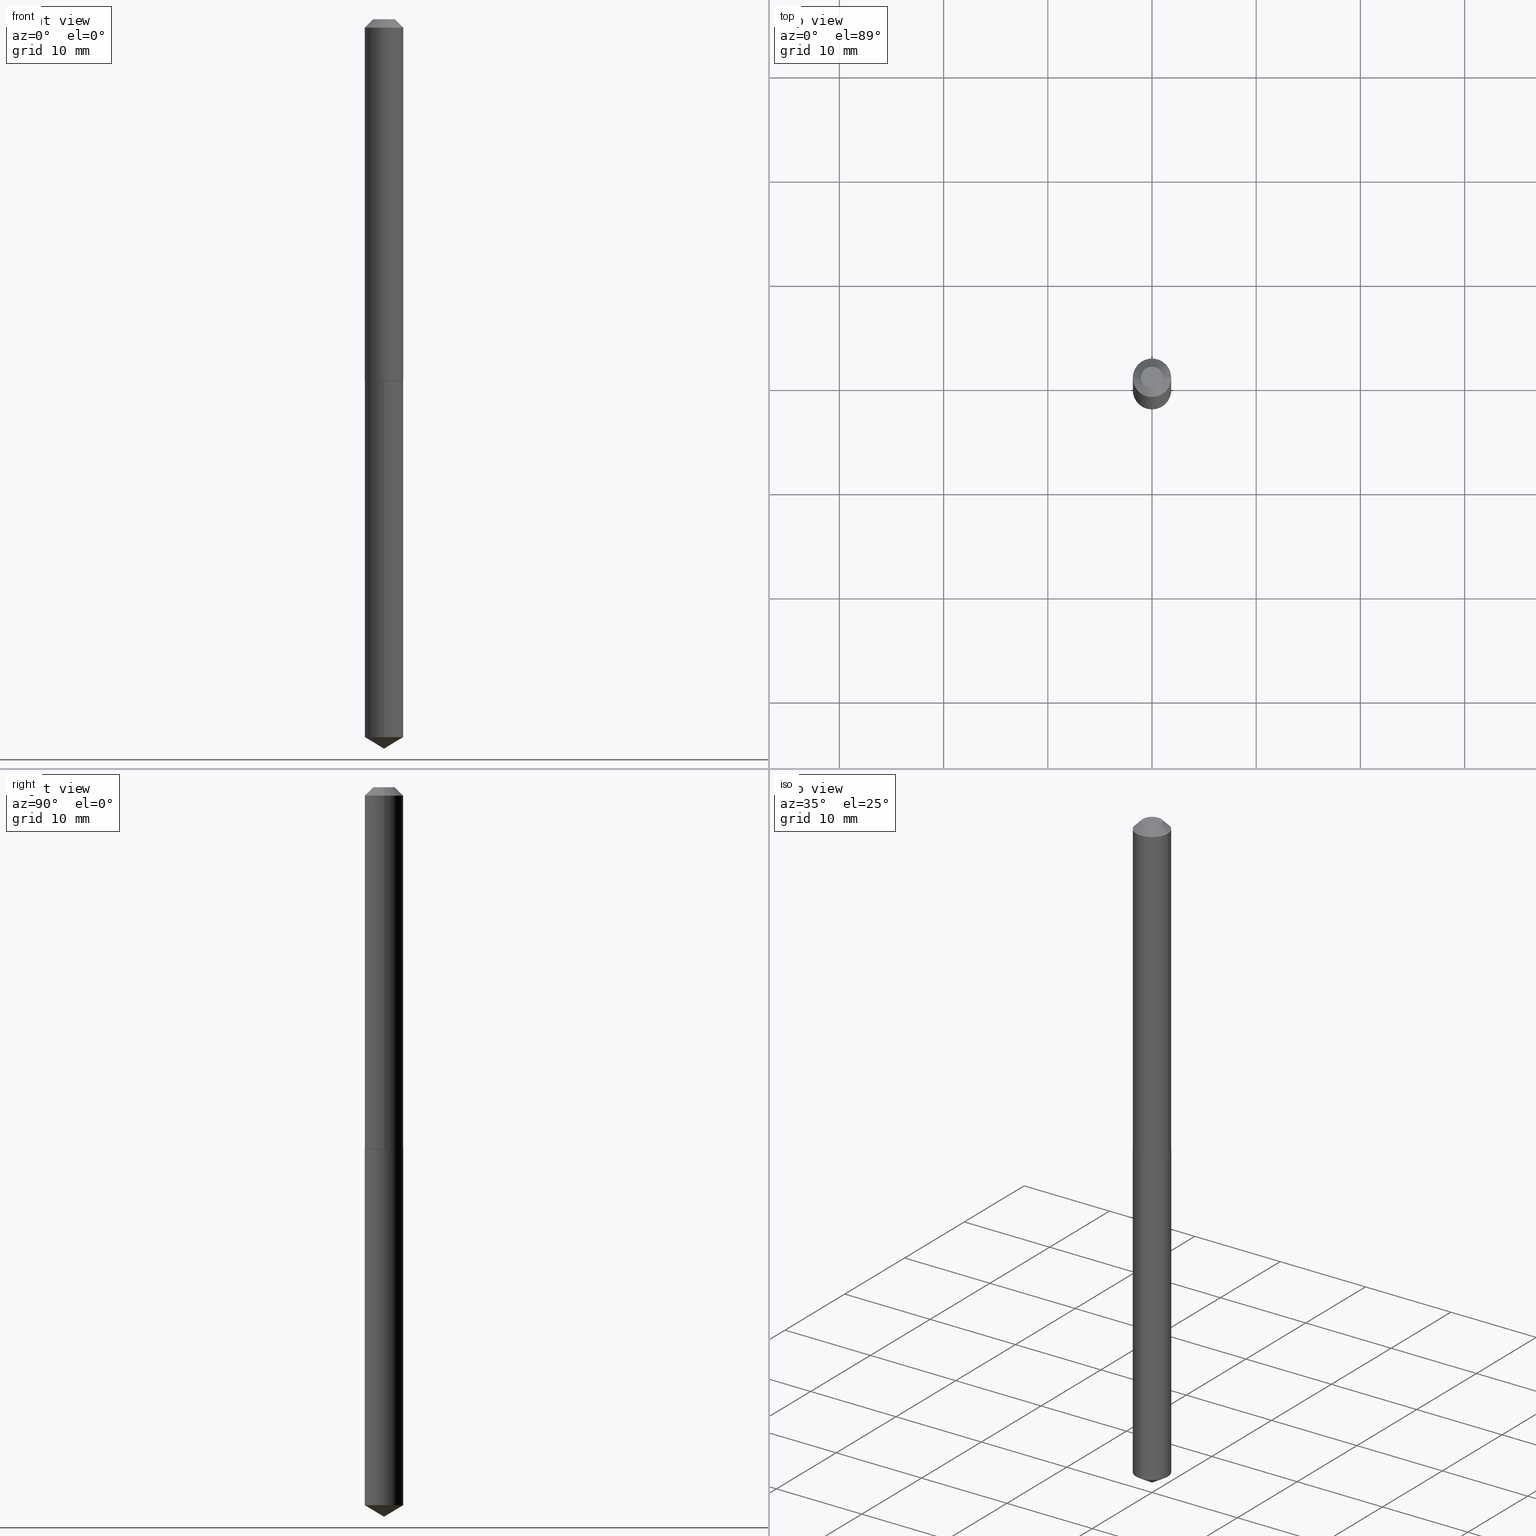
[diagram: canonical four-view strip — front | top / right | iso, engineering-drawing reading convention]
A machine part, canonical four-view strip (front | top / right | iso — engineering-drawing reading convention). The complete STEP part file that produces these views, byte-faithful:
ISO-10303-21;
HEADER;
FILE_DESCRIPTION (( 'STEP AP203' ),
    '1' );
FILE_NAME ('68315.STEP',
    '2024-04-23T13:03:54',
    ( '' ),
    ( '' ),
    'SwSTEP 2.0',
    'SolidWorks 2023',
    '' );
FILE_SCHEMA (( 'CONFIG_CONTROL_DESIGN' ));
ENDSEC;

DATA;
#1 = CC_DESIGN_PERSON_AND_ORGANIZATION_ASSIGNMENT ( #146, #44, ( #35 ) ) ;
#2 = AXIS2_PLACEMENT_3D ( 'NONE', #37, #222, #332 ) ;
#3 = EDGE_CURVE ( 'NONE', #169, #38, #289, .T. ) ;
#4 = ADVANCED_FACE ( 'NONE', ( #212 ), #27, .F. ) ;
#5 = DIRECTION ( 'NONE',  ( 1.000000000000000000, -6.982962677686265922E-15, 0.000000000000000000 ) ) ;
#6 = ADVANCED_FACE ( 'NONE', ( #57 ), #263, .F. ) ;
#7 = ORIENTED_EDGE ( 'NONE', *, *, #131, .F. ) ;
#8 = DIRECTION ( 'NONE',  ( -2.445468806185136597E-29, 3.491481338843145583E-15, 1.000000000000000000 ) ) ;
#9 = VERTEX_POINT ( 'NONE', #347 ) ;
#10 = DATE_AND_TIME ( #353, #214 ) ;
#11 = ADVANCED_FACE ( 'NONE', ( #247 ), #127, .T. ) ;
#12 = DIRECTION ( 'NONE',  ( -2.445528388085863284E-29, 3.491396014170113419E-15, 1.000000000000000000 ) ) ;
#13 = APPROVAL_PERSON_ORGANIZATION ( #208, #249, #264 ) ;
#14 = ORIENTED_EDGE ( 'NONE', *, *, #81, .T. ) ;
#15 = ORGANIZATION ( 'UNSPECIFIED', 'UNSPECIFIED', '' ) ;
#16 = CARTESIAN_POINT ( 'NONE',  ( -0.07285000000000001197, -1.921082045147231496E-15, -0.03125000000000021511 ) ) ;
#17 = ORIENTED_EDGE ( 'NONE', *, *, #47, .T. ) ;
#18 = PERSON_AND_ORGANIZATION ( #270, #15 ) ;
#19 = DIRECTION ( 'NONE',  ( -6.982962677686265922E-15, -1.000000000000000000, 3.749962928845934523E-15 ) ) ;
#20 = CARTESIAN_POINT ( 'NONE',  ( 6.739633112303563781E-29, -9.621938275451417596E-15, -2.755900000000000016 ) ) ;
#21 = DIRECTION ( 'NONE',  ( 1.000000000000000000, -6.982962677686261977E-15, 0.000000000000000000 ) ) ;
#22 = DATE_TIME_ROLE ( 'classification_date' ) ;
#23 = LINE ( 'NONE', #359, #49 ) ;
#24 = CARTESIAN_POINT ( 'NONE',  ( 0.07285000000000016462, -5.277024895527528458E-15, -1.365699999999999914 ) ) ;
#25 = PERSON_AND_ORGANIZATION_ROLE ( 'design_supplier' ) ;
#26 = DIRECTION ( 'NONE',  ( -0.7071067811864629737, 7.493145998870048082E-15, 0.7071067811866319497 ) ) ;
#27 = PLANE ( 'NONE',  #36 ) ;
#28 = DIRECTION ( 'NONE',  ( -2.445468806185136597E-29, 3.491481338843145583E-15, 1.000000000000000000 ) ) ;
#29 = DIRECTION ( 'NONE',  ( 0.7071067811865451302, -7.319954787623248157E-15, -0.7071067811865499042 ) ) ;
#30 = CONICAL_SURFACE ( 'NONE', #315, 0.07285000000000016462, 0.7853981633973288190 ) ;
#31 =( NAMED_UNIT ( * ) PLANE_ANGLE_UNIT ( ) SI_UNIT ( $, .RADIAN. ) );
#32 = DIRECTION ( 'NONE',  ( 1.000000000000000000, -6.982962677686265922E-15, 0.000000000000000000 ) ) ;
#33 = DIRECTION ( 'NONE',  ( -2.445468806185136597E-29, 3.491481338843145583E-15, 1.000000000000000000 ) ) ;
#34 = ADVANCED_FACE ( 'NONE', ( #313 ), #39, .T. ) ;
#35 = PRODUCT_DEFINITION_FORMATION_WITH_SPECIFIED_SOURCE ( 'ANY', '', #336, .NOT_KNOWN. ) ;
#36 = AXIS2_PLACEMENT_3D ( 'NONE', #149, #128, #92 ) ;
#37 = CARTESIAN_POINT ( 'NONE',  ( 3.340999483010132766E-29, -4.770061805127504889E-15, -1.366199999999999859 ) ) ;
#38 = VERTEX_POINT ( 'NONE', #282 ) ;
#39 = CYLINDRICAL_SURFACE ( 'NONE', #243, 0.07285000000000008136 ) ;
#40 = CIRCLE ( 'NONE', #100, 0.07285000000000001197 ) ;
#41 = EDGE_CURVE ( 'NONE', #134, #76, #311, .T. ) ;
#42 = ORIENTED_EDGE ( 'NONE', *, *, #156, .F. ) ;
#43 = ORIENTED_EDGE ( 'NONE', *, *, #312, .F. ) ;
#44 = PERSON_AND_ORGANIZATION_ROLE ( 'creator' ) ;
#45 = LINE ( 'NONE', #107, #78 ) ;
#46 = APPROVAL_DATE_TIME ( #139, #303 ) ;
#47 = EDGE_CURVE ( 'NONE', #294, #9, #142, .T. ) ;
#48 = DIRECTION ( 'NONE',  ( -2.445468806185136597E-29, 3.491481338843145583E-15, 1.000000000000000000 ) ) ;
#49 = VECTOR ( 'NONE', #29, 39.37007874015748143 ) ;
#50 = ORIENTED_EDGE ( 'NONE', *, *, #63, .F. ) ;
#51 = CLOSED_SHELL ( 'NONE', ( #98, #342, #11, #371, #4 ) ) ;
#52 = PERSON_AND_ORGANIZATION ( #270, #15 ) ;
#53 = PLANE ( 'NONE',  #276 ) ;
#54 = EDGE_CURVE ( 'NONE', #370, #258, #104, .T. ) ;
#55 = CALENDAR_DATE ( 2024, 23, 4 ) ;
#56 = LINE ( 'NONE', #383, #241 ) ;
#57 = FACE_OUTER_BOUND ( 'NONE', #252, .T. ) ;
#58 = EDGE_CURVE ( 'NONE', #169, #370, #45, .T. ) ;
#59 = MANIFOLD_SOLID_BREP ( 'Body-Move/Copy2[1]', #51 ) ;
#60 = AXIS2_PLACEMENT_3D ( 'NONE', #161, #379, #117 ) ;
#61 = DIRECTION ( 'NONE',  ( -1.000000000000000000, 6.982962677686265922E-15, 0.000000000000000000 ) ) ;
#62 = FACE_OUTER_BOUND ( 'NONE', #324, .T. ) ;
#63 = EDGE_CURVE ( 'NONE', #145, #373, #144, .T. ) ;
#64 = CARTESIAN_POINT ( 'NONE',  ( 7.642090019328604414E-31, -1.091087918388490513E-16, -0.03125000000000021511 ) ) ;
#65 = ORIENTED_EDGE ( 'NONE', *, *, #47, .F. ) ;
#66 = MANIFOLD_SOLID_BREP ( 'Body-Move/Copy2[2]', #234 ) ;
#67 = DIRECTION ( 'NONE',  ( -2.445468806185136597E-29, 3.491481338843145583E-15, 1.000000000000000000 ) ) ;
#68 = CC_DESIGN_APPROVAL ( #249, ( #35 ) ) ;
#69 = LOCAL_TIME ( 9, 3, 54.00000000000000000, #260 ) ;
#70 = APPROVAL_PERSON_ORGANIZATION ( #381, #297, #232 ) ;
#71 = ADVANCED_FACE ( 'NONE', ( #168 ), #269, .T. ) ;
#72 = DIRECTION ( 'NONE',  ( -1.000000000000000000, 6.982962677686265922E-15, 0.000000000000000000 ) ) ;
#73 = ORIENTED_EDGE ( 'NONE', *, *, #334, .T. ) ;
#74 = PERSON_AND_ORGANIZATION ( #270, #15 ) ;
#75 = CARTESIAN_POINT ( 'NONE',  ( 7.642090019328604414E-31, -1.091087918388490513E-16, -0.03125000000000021511 ) ) ;
#76 = VERTEX_POINT ( 'NONE', #201 ) ;
#77 = EDGE_CURVE ( 'NONE', #231, #227, #280, .T. ) ;
#78 = VECTOR ( 'NONE', #137, 39.37007874015748854 ) ;
#79 = APPROVAL_STATUS ( 'not_yet_approved' ) ;
#80 = CARTESIAN_POINT ( 'NONE',  ( 3.339776748607040525E-29, -4.768316064458083385E-15, -1.365699999999999914 ) ) ;
#81 = EDGE_CURVE ( 'NONE', #166, #227, #388, .T. ) ;
#82 = APPROVAL_DATE_TIME ( #200, #249 ) ;
#83 = CARTESIAN_POINT ( 'NONE',  ( 7.642090019328604414E-31, -1.091087918388490513E-16, -0.03125000000000021511 ) ) ;
#84 = ORIENTED_EDGE ( 'NONE', *, *, #77, .T. ) ;
#85 = PERSON_AND_ORGANIZATION_ROLE ( 'creator' ) ;
#86 = CARTESIAN_POINT ( 'NONE',  ( 3.340999483010132766E-29, -4.770061805127504889E-15, -1.366199999999999859 ) ) ;
#87 = AXIS2_PLACEMENT_3D ( 'NONE', #86, #206, #19 ) ;
#88 = ORIENTED_EDGE ( 'NONE', *, *, #3, .F. ) ;
#89 = CC_DESIGN_SECURITY_CLASSIFICATION ( #177, ( #35 ) ) ;
#90 = APPROVAL_STATUS ( 'not_yet_approved' ) ;
#91 = DIRECTION ( 'NONE',  ( 6.090539988449784746E-15, 0.8571673007021146651, 0.5150380749100500477 ) ) ;
#92 = DIRECTION ( 'NONE',  ( 6.982962677686265922E-15, 1.000000000000000000, -3.491396014170113419E-15 ) ) ;
#93 = FACE_OUTER_BOUND ( 'NONE', #380, .T. ) ;
#94 = DIRECTION ( 'NONE',  ( 2.445468806185136597E-29, -3.491481338843145583E-15, -1.000000000000000000 ) ) ;
#95 = ORIENTED_EDGE ( 'NONE', *, *, #191, .T. ) ;
#96 = FACE_OUTER_BOUND ( 'NONE', #301, .T. ) ;
#97 = CARTESIAN_POINT ( 'NONE',  ( 6.632502913006848592E-29, -9.469227029340106795E-15, -2.712127303903842268 ) ) ;
#98 = ADVANCED_FACE ( 'NONE', ( #319 ), #285, .T. ) ;
#99 = EDGE_LOOP ( 'NONE', ( #14, #283 ) ) ;
#100 = AXIS2_PLACEMENT_3D ( 'NONE', #309, #189, #32 ) ;
#101 = AXIS2_PLACEMENT_3D ( 'NONE', #80, #8, #109 ) ;
#102 = CARTESIAN_POINT ( 'NONE',  ( 3.339776748607040525E-29, -4.768316064458083385E-15, -1.365699999999999914 ) ) ;
#103 = AXIS2_PLACEMENT_3D ( 'NONE', #157, #329, #122 ) ;
#104 = CIRCLE ( 'NONE', #101, 0.07285000000000016462 ) ;
#105 = DIRECTION ( 'NONE',  ( -2.445528388085863284E-29, 3.491396014170113419E-15, 1.000000000000000000 ) ) ;
#106 = APPLICATION_PROTOCOL_DEFINITION ( 'international standard', 'config_control_design', 1994, #267 ) ;
#107 = CARTESIAN_POINT ( 'NONE',  ( 0.07285000000000016462, -5.277024895527528458E-15, -1.365699999999999914 ) ) ;
#108 = ORIENTED_EDGE ( 'NONE', *, *, #218, .T. ) ;
#109 = DIRECTION ( 'NONE',  ( 1.000000000000000000, -6.982962677686262766E-15, 0.000000000000000000 ) ) ;
#110 = ORIENTED_EDGE ( 'NONE', *, *, #225, .F. ) ;
#111 = AXIS2_PLACEMENT_3D ( 'NONE', #163, #33, #273 ) ;
#112 = DIRECTION ( 'NONE',  ( -2.445528388085863284E-29, 3.491396014170113419E-15, 1.000000000000000000 ) ) ;
#113 = CC_DESIGN_PERSON_AND_ORGANIZATION_ASSIGNMENT ( #328, #25, ( #35 ) ) ;
#114 = DIRECTION ( 'NONE',  ( -6.982962677686265922E-15, -1.000000000000000000, 3.749962928845934523E-15 ) ) ;
#115 = ORIENTED_EDGE ( 'NONE', *, *, #41, .T. ) ;
#116 = APPLICATION_PROTOCOL_DEFINITION ( 'international standard', 'config_control_design', 1994, #327 ) ;
#117 = DIRECTION ( 'NONE',  ( -6.982962677686265922E-15, -1.000000000000000000, 3.749962928845934523E-15 ) ) ;
#118 = ORIENTED_EDGE ( 'NONE', *, *, #204, .F. ) ;
#119 = VECTOR ( 'NONE', #296, 39.37007874015748143 ) ;
#120 = ORIENTED_EDGE ( 'NONE', *, *, #41, .F. ) ;
#121 = LINE ( 'NONE', #338, #325 ) ;
#122 = DIRECTION ( 'NONE',  ( -6.982962677686265133E-15, -1.000000000000000000, 0.000000000000000000 ) ) ;
#123 = DIMENSIONAL_EXPONENTS ( 1.000000000000000000, 0.000000000000000000, 0.000000000000000000, 0.000000000000000000, 0.000000000000000000, 0.000000000000000000, 0.000000000000000000 ) ;
#124 = ORIENTED_EDGE ( 'NONE', *, *, #334, .F. ) ;
#125 = CC_DESIGN_PERSON_AND_ORGANIZATION_ASSIGNMENT ( #205, #85, ( #192 ) ) ;
#126 = VECTOR ( 'NONE', #230, 39.37007874015748143 ) ;
#127 = CONICAL_SURFACE ( 'NONE', #217, 65.52281426576863055, 1.029744258676655866 ) ;
#128 = DIRECTION ( 'NONE',  ( 2.445528388085863284E-29, -3.491396014170113419E-15, -1.000000000000000000 ) ) ;
#129 = EDGE_CURVE ( 'NONE', #9, #134, #199, .T. ) ;
#130 = VECTOR ( 'NONE', #91, 39.37007874015748143 ) ;
#131 = EDGE_CURVE ( 'NONE', #9, #294, #261, .T. ) ;
#132 = CIRCLE ( 'NONE', #103, 0.07285000000000001197 ) ;
#133 = DIRECTION ( 'NONE',  ( 2.438088387897960049E-29, -3.491481338843145188E-15, -1.000000000000000000 ) ) ;
#134 = VERTEX_POINT ( 'NONE', #16 ) ;
#135 = DIRECTION ( 'NONE',  ( 2.445468806185136597E-29, -3.491481338843145583E-15, -1.000000000000000000 ) ) ;
#136 = EDGE_LOOP ( 'NONE', ( #178, #84, #198, #271 ) ) ;
#137 = DIRECTION ( 'NONE',  ( 0.7071067811864629737, -2.468850131081371564E-15, 0.7071067811866319497 ) ) ;
#138 = ORIENTED_EDGE ( 'NONE', *, *, #150, .F. ) ;
#139 = DATE_AND_TIME ( #179, #262 ) ;
#140 = AXIS2_PLACEMENT_3D ( 'NONE', #226, #48, #257 ) ;
#141 = DIRECTION ( 'NONE',  ( -2.445528388085863284E-29, 3.491396014170113419E-15, 1.000000000000000000 ) ) ;
#142 = CIRCLE ( 'NONE', #343, 0.04159999999999999809 ) ;
#143 = ORIENTED_EDGE ( 'NONE', *, *, #164, .F. ) ;
#144 = LINE ( 'NONE', #375, #298 ) ;
#145 = VERTEX_POINT ( 'NONE', #220 ) ;
#146 = PERSON_AND_ORGANIZATION ( #270, #15 ) ;
#147 = FACE_OUTER_BOUND ( 'NONE', #350, .T. ) ;
#148 = DIRECTION ( 'NONE',  ( -6.982962677686265133E-15, -1.000000000000000000, 0.000000000000000000 ) ) ;
#149 = CARTESIAN_POINT ( 'NONE',  ( 3.340999483010132766E-29, -4.770061805127504889E-15, -1.366199999999999859 ) ) ;
#150 = EDGE_CURVE ( 'NONE', #38, #169, #279, .T. ) ;
#151 = ADVANCED_BREP_SHAPE_REPRESENTATION ( '68315', ( #59, #66, #376 ), #194 ) ;
#152 = LINE ( 'NONE', #20, #130 ) ;
#153 = AXIS2_PLACEMENT_3D ( 'NONE', #259, #358, #322 ) ;
#154 = ORIENTED_EDGE ( 'NONE', *, *, #3, .T. ) ;
#155 = CC_DESIGN_APPROVAL ( #303, ( #177 ) ) ;
#156 = EDGE_CURVE ( 'NONE', #370, #76, #386, .T. ) ;
#157 = CARTESIAN_POINT ( 'NONE',  ( 6.632502913006848592E-29, -9.469227029340106795E-15, -2.712127303903842268 ) ) ;
#158 = ORIENTED_EDGE ( 'NONE', *, *, #129, .T. ) ;
#159 = ORIENTED_EDGE ( 'NONE', *, *, #312, .T. ) ;
#160 = FACE_OUTER_BOUND ( 'NONE', #250, .T. ) ;
#161 = CARTESIAN_POINT ( 'NONE',  ( 3.340999483010132766E-29, -4.770061805127504889E-15, -1.366199999999999859 ) ) ;
#162 = CIRCLE ( 'NONE', #111, 0.07285000000000016462 ) ;
#163 = CARTESIAN_POINT ( 'NONE',  ( 3.339776748607040525E-29, -4.768316064458083385E-15, -1.365699999999999914 ) ) ;
#164 = EDGE_CURVE ( 'NONE', #294, #76, #23, .T. ) ;
#165 = CARTESIAN_POINT ( 'NONE',  ( -8.954109491629777523E-28, 1.278344811449296430E-13, 36.61417874015747742 ) ) ;
#166 = VERTEX_POINT ( 'NONE', #335 ) ;
#167 = AXIS2_PLACEMENT_3D ( 'NONE', #83, #135, #72 ) ;
#168 = FACE_OUTER_BOUND ( 'NONE', #299, .T. ) ;
#169 = VERTEX_POINT ( 'NONE', #180 ) ;
#170 = CARTESIAN_POINT ( 'NONE',  ( 0.000000000000000000, 0.000000000000000000, 0.000000000000000000 ) ) ;
#171 = DIRECTION ( 'NONE',  ( -2.445468806185136597E-29, 3.491481338843145583E-15, 1.000000000000000000 ) ) ;
#172 = ORIENTED_EDGE ( 'NONE', *, *, #58, .T. ) ;
#173 = DIRECTION ( 'NONE',  ( 1.000000000000000000, -6.982962677686265922E-15, 4.876201187447971567E-29 ) ) ;
#174 = ORIENTED_EDGE ( 'NONE', *, *, #255, .T. ) ;
#175 = SHAPE_DEFINITION_REPRESENTATION ( #203, #151 ) ;
#176 =( LENGTH_UNIT ( ) NAMED_UNIT ( * ) SI_UNIT ( $, .METRE. ) );
#177 = SECURITY_CLASSIFICATION ( '', '', #331 ) ;
#178 = ORIENTED_EDGE ( 'NONE', *, *, #204, .T. ) ;
#179 = CALENDAR_DATE ( 2024, 23, 4 ) ;
#180 = CARTESIAN_POINT ( 'NONE',  ( 0.07235000000000038622, -5.275279154858108532E-15, -1.366199999999999859 ) ) ;
#181 = ADVANCED_FACE ( 'NONE', ( #96 ), #53, .F. ) ;
#182 = CALENDAR_DATE ( 2024, 23, 4 ) ;
#183 = DIRECTION ( 'NONE',  ( -2.445528388085863284E-29, 3.491396014170113419E-15, 1.000000000000000000 ) ) ;
#184 = DIRECTION ( 'NONE',  ( 1.000000000000000000, -6.982962677686262766E-15, 0.000000000000000000 ) ) ;
#185 = DATE_TIME_ROLE ( 'creation_date' ) ;
#186 = CARTESIAN_POINT ( 'NONE',  ( 0.07285000000000008136, -5.087088310694450726E-16, 3.552294781167343726E-30 ) ) ;
#187 = LOCAL_TIME ( 9, 3, 54.00000000000000000, #229 ) ;
#188 = CARTESIAN_POINT ( 'NONE',  ( -0.07285000000000008136, 5.176303830012335635E-16, -3.583444213250702632E-30 ) ) ;
#189 = DIRECTION ( 'NONE',  ( -2.445468806185136597E-29, 3.491481338843145583E-15, 1.000000000000000000 ) ) ;
#190 = VECTOR ( 'NONE', #112, 39.37007874015748143 ) ;
#191 = EDGE_CURVE ( 'NONE', #145, #231, #152, .T. ) ;
#192 = PRODUCT_DEFINITION ( 'UNKNOWN', '', #35, #364 ) ;
#193 = DIRECTION ( 'NONE',  ( 1.000000000000000000, -6.982962677686262766E-15, 0.000000000000000000 ) ) ;
#194 =( GEOMETRIC_REPRESENTATION_CONTEXT ( 3 ) GLOBAL_UNCERTAINTY_ASSIGNED_CONTEXT ( ( #306 ) ) GLOBAL_UNIT_ASSIGNED_CONTEXT ( ( #242, #31, #308 ) ) REPRESENTATION_CONTEXT ( 'NONE', 'WORKASPACE' ) );
#195 = CARTESIAN_POINT ( 'NONE',  ( -0.07285000000000001197, 3.996000392305954789E-16, -0.03125000000000021511 ) ) ;
#196 = ORIENTED_EDGE ( 'NONE', *, *, #54, .F. ) ;
#197 = CARTESIAN_POINT ( 'NONE',  ( 3.340999483010132766E-29, -4.770061805127504889E-15, -1.366199999999999859 ) ) ;
#198 = ORIENTED_EDGE ( 'NONE', *, *, #81, .F. ) ;
#199 = LINE ( 'NONE', #195, #287 ) ;
#200 = DATE_AND_TIME ( #55, #69 ) ;
#201 = CARTESIAN_POINT ( 'NONE',  ( 0.07285000000000001197, -6.178176229082936802E-16, -0.03125000000000021511 ) ) ;
#202 = ORIENTED_EDGE ( 'NONE', *, *, #164, .T. ) ;
#203 = PRODUCT_DEFINITION_SHAPE ( 'NONE', 'NONE',  #192 ) ;
#204 = EDGE_CURVE ( 'NONE', #373, #231, #362, .T. ) ;
#205 = PERSON_AND_ORGANIZATION ( #270, #15 ) ;
#206 = DIRECTION ( 'NONE',  ( -2.445528388085863284E-29, 3.491396014170113419E-15, 1.000000000000000000 ) ) ;
#207 = DIRECTION ( 'NONE',  ( -1.000000000000000000, 6.982962677686265922E-15, -4.876176775795935793E-29 ) ) ;
#208 = PERSON_AND_ORGANIZATION ( #270, #15 ) ;
#209 = EDGE_LOOP ( 'NONE', ( #110, #278, #172, #124 ) ) ;
#210 = PERSON_AND_ORGANIZATION_ROLE ( 'classification_officer' ) ;
#211 = LINE ( 'NONE', #188, #126 ) ;
#212 = FACE_OUTER_BOUND ( 'NONE', #99, .T. ) ;
#213 = FACE_OUTER_BOUND ( 'NONE', #320, .T. ) ;
#214 = LOCAL_TIME ( 9, 3, 54.00000000000000000, #288 ) ;
#215 = CARTESIAN_POINT ( 'NONE',  ( -8.954109491629777523E-28, 1.278344811449296430E-13, 36.61417874015747742 ) ) ;
#216 = AXIS2_PLACEMENT_3D ( 'NONE', #354, #390, #21 ) ;
#217 = AXIS2_PLACEMENT_3D ( 'NONE', #165, #12, #349 ) ;
#218 = EDGE_CURVE ( 'NONE', #231, #373, #132, .T. ) ;
#219 = APPROVAL_PERSON_ORGANIZATION ( #18, #303, #284 ) ;
#220 = CARTESIAN_POINT ( 'NONE',  ( 6.739631684725830769E-29, -9.621938275451414440E-15, -2.755900000000000016 ) ) ;
#221 = ORIENTED_EDGE ( 'NONE', *, *, #77, .F. ) ;
#222 = DIRECTION ( 'NONE',  ( -2.445468806185136597E-29, 3.491481338843145583E-15, 1.000000000000000000 ) ) ;
#223 = ORIENTED_EDGE ( 'NONE', *, *, #191, .F. ) ;
#224 = DIRECTION ( 'NONE',  ( -2.445468806185136597E-29, 3.491481338843145583E-15, 1.000000000000000000 ) ) ;
#225 = EDGE_CURVE ( 'NONE', #38, #258, #56, .T. ) ;
#226 = CARTESIAN_POINT ( 'NONE',  ( -5.989671091818665474E-48, 8.551662891793964028E-34, 2.449293598294711584E-19 ) ) ;
#227 = VERTEX_POINT ( 'NONE', #357 ) ;
#228 = PRODUCT_RELATED_PRODUCT_CATEGORY ( 'detail', '', ( #336 ) ) ;
#229 = COORDINATED_UNIVERSAL_TIME_OFFSET ( 5, 0, .BEHIND. ) ;
#230 = DIRECTION ( 'NONE',  ( -2.445468806185136877E-29, 3.491481338843145188E-15, 1.000000000000000000 ) ) ;
#231 = VERTEX_POINT ( 'NONE', #300 ) ;
#232 = APPROVAL_ROLE ( '' ) ;
#233 = CC_DESIGN_APPROVAL ( #297, ( #192 ) ) ;
#234 = CLOSED_SHELL ( 'NONE', ( #71, #34, #366, #181, #281, #385, #244, #6 ) ) ;
#235 = PERSON_AND_ORGANIZATION_ROLE ( 'design_owner' ) ;
#236 = CC_DESIGN_DATE_AND_TIME_ASSIGNMENT ( #295, #22, ( #177 ) ) ;
#237 = DIRECTION ( 'NONE',  ( -2.445528388085863284E-29, 3.491396014170113419E-15, 1.000000000000000000 ) ) ;
#238 = APPROVAL_STATUS ( 'not_yet_approved' ) ;
#239 = AXIS2_PLACEMENT_3D ( 'NONE', #64, #94, #61 ) ;
#240 = EDGE_CURVE ( 'NONE', #373, #166, #121, .T. ) ;
#241 = VECTOR ( 'NONE', #26, 39.37007874015748854 ) ;
#242 =( CONVERSION_BASED_UNIT ( 'INCH', #274 ) LENGTH_UNIT ( ) NAMED_UNIT ( #123 ) );
#243 = AXIS2_PLACEMENT_3D ( 'NONE', #377, #224, #316 ) ;
#244 = ADVANCED_FACE ( 'NONE', ( #213 ), #253, .T. ) ;
#245 = AXIS2_PLACEMENT_3D ( 'NONE', #102, #67, #193 ) ;
#246 = DIRECTION ( 'NONE',  ( 0.000000000000000000, 0.000000000000000000, 1.000000000000000000 ) ) ;
#247 = FACE_OUTER_BOUND ( 'NONE', #248, .T. ) ;
#248 = EDGE_LOOP ( 'NONE', ( #223, #348, #292 ) ) ;
#249 = APPROVAL ( #79, 'UNSPECIFIED' ) ;
#250 = EDGE_LOOP ( 'NONE', ( #221, #108, #346, #378 ) ) ;
#251 = CARTESIAN_POINT ( 'NONE',  ( -5.989671091818665474E-48, 8.551662891793964028E-34, 2.449293598294711584E-19 ) ) ;
#252 = EDGE_LOOP ( 'NONE', ( #352, #17 ) ) ;
#253 = CONICAL_SURFACE ( 'NONE', #239, 0.07285000000000001197, 0.7853981633974449483 ) ;
#254 = AXIS2_PLACEMENT_3D ( 'NONE', #333, #133, #207 ) ;
#255 = EDGE_CURVE ( 'NONE', #258, #134, #211, .T. ) ;
#256 = ORIENTED_EDGE ( 'NONE', *, *, #129, .F. ) ;
#257 = DIRECTION ( 'NONE',  ( 1.000000000000000000, -6.982962677686265922E-15, 4.876201187447971567E-29 ) ) ;
#258 = VERTEX_POINT ( 'NONE', #304 ) ;
#259 = CARTESIAN_POINT ( 'NONE',  ( 0.000000000000000000, 0.000000000000000000, 0.000000000000000000 ) ) ;
#260 = COORDINATED_UNIVERSAL_TIME_OFFSET ( 5, 0, .BEHIND. ) ;
#261 = CIRCLE ( 'NONE', #140, 0.04159999999999999809 ) ;
#262 = LOCAL_TIME ( 9, 3, 54.00000000000000000, #356 ) ;
#263 = PLANE ( 'NONE',  #254 ) ;
#264 = APPROVAL_ROLE ( '' ) ;
#265 = CARTESIAN_POINT ( 'NONE',  ( -5.087088310693781180E-16, -0.07285000000000946274, -2.712127303903842268 ) ) ;
#266 = CARTESIAN_POINT ( 'NONE',  ( 3.340999483010132766E-29, -4.770061805127504889E-15, -1.366199999999999859 ) ) ;
#267 = APPLICATION_CONTEXT ( 'configuration controlled 3d designs of mechanical parts and assemblies' ) ;
#268 = FACE_OUTER_BOUND ( 'NONE', #209, .T. ) ;
#269 = CONICAL_SURFACE ( 'NONE', #167, 0.07285000000000001197, 0.7853981633974449483 ) ;
#270 = PERSON ( 'UNSPECIFIED', 'UNSPECIFIED', 'UNSPECIFIED', ('UNSPECIFIED'), ('UNSPECIFIED'), ('UNSPECIFIED') ) ;
#271 = ORIENTED_EDGE ( 'NONE', *, *, #240, .F. ) ;
#272 = AXIS2_PLACEMENT_3D ( 'NONE', #75, #171, #5 ) ;
#273 = DIRECTION ( 'NONE',  ( 1.000000000000000000, -6.982962677686262766E-15, 0.000000000000000000 ) ) ;
#274 = LENGTH_MEASURE_WITH_UNIT ( LENGTH_MEASURE( 0.02539999999999999897 ), #176 );
#275 = EDGE_CURVE ( 'NONE', #227, #166, #310, .T. ) ;
#276 = AXIS2_PLACEMENT_3D ( 'NONE', #266, #361, #293 ) ;
#277 = DIRECTION ( 'NONE',  ( 1.000000000000000000, 0.000000000000000000, 0.000000000000000000 ) ) ;
#278 = ORIENTED_EDGE ( 'NONE', *, *, #150, .T. ) ;
#279 = CIRCLE ( 'NONE', #2, 0.07235000000000038622 ) ;
#280 = LINE ( 'NONE', #372, #190 ) ;
#281 = ADVANCED_FACE ( 'NONE', ( #268 ), #305, .T. ) ;
#282 = CARTESIAN_POINT ( 'NONE',  ( -0.07235000000000038622, -4.253334908630959445E-15, -1.366199999999999859 ) ) ;
#283 = ORIENTED_EDGE ( 'NONE', *, *, #275, .T. ) ;
#284 = APPROVAL_ROLE ( '' ) ;
#285 = CYLINDRICAL_SURFACE ( 'NONE', #290, 0.07284999999999999809 ) ;
#286 = ORIENTED_EDGE ( 'NONE', *, *, #58, .F. ) ;
#287 = VECTOR ( 'NONE', #323, 39.37007874015748143 ) ;
#288 = COORDINATED_UNIVERSAL_TIME_OFFSET ( 5, 0, .BEHIND. ) ;
#289 = CIRCLE ( 'NONE', #216, 0.07235000000000038622 ) ;
#290 = AXIS2_PLACEMENT_3D ( 'NONE', #197, #141, #114 ) ;
#291 = DIRECTION ( 'NONE',  ( -6.982962677686265922E-15, -1.000000000000000000, 3.749962928845934523E-15 ) ) ;
#292 = ORIENTED_EDGE ( 'NONE', *, *, #218, .F. ) ;
#293 = DIRECTION ( 'NONE',  ( 1.000000000000000000, -6.982962677686265922E-15, 4.876176775795935793E-29 ) ) ;
#294 = VERTEX_POINT ( 'NONE', #389 ) ;
#295 = DATE_AND_TIME ( #182, #340 ) ;
#296 = DIRECTION ( 'NONE',  ( -2.445468806185136877E-29, 3.491481338843145188E-15, 1.000000000000000000 ) ) ;
#297 = APPROVAL ( #238, 'UNSPECIFIED' ) ;
#298 = VECTOR ( 'NONE', #344, 39.37007874015748854 ) ;
#299 = EDGE_LOOP ( 'NONE', ( #65, #202, #159, #256 ) ) ;
#300 = CARTESIAN_POINT ( 'NONE',  ( 5.176303830012991375E-16, 0.07284999999999051956, -2.712127303903842268 ) ) ;
#301 = EDGE_LOOP ( 'NONE', ( #88, #138 ) ) ;
#302 = CARTESIAN_POINT ( 'NONE',  ( 3.339776748607040525E-29, -4.768316064458083385E-15, -1.365699999999999914 ) ) ;
#303 = APPROVAL ( #90, 'UNSPECIFIED' ) ;
#304 = CARTESIAN_POINT ( 'NONE',  ( -0.07285000000000016462, -4.250685681456849033E-15, -1.365699999999999914 ) ) ;
#305 = CONICAL_SURFACE ( 'NONE', #245, 0.07285000000000016462, 0.7853981633973288190 ) ;
#306 = UNCERTAINTY_MEASURE_WITH_UNIT (LENGTH_MEASURE( 1.000000000000000082E-05 ), #242, 'distance_accuracy_value', 'NONE');
#307 = CC_DESIGN_DATE_AND_TIME_ASSIGNMENT ( #10, #185, ( #192 ) ) ;
#308 =( NAMED_UNIT ( * ) SI_UNIT ( $, .STERADIAN. ) SOLID_ANGLE_UNIT ( ) );
#309 = CARTESIAN_POINT ( 'NONE',  ( 7.642090019328604414E-31, -1.091087918388490513E-16, -0.03125000000000021511 ) ) ;
#310 = CIRCLE ( 'NONE', #60, 0.07284999999999999809 ) ;
#311 = CIRCLE ( 'NONE', #272, 0.07285000000000001197 ) ;
#312 = EDGE_CURVE ( 'NONE', #76, #134, #40, .T. ) ;
#313 = FACE_OUTER_BOUND ( 'NONE', #317, .T. ) ;
#314 = ORIENTED_EDGE ( 'NONE', *, *, #156, .T. ) ;
#315 = AXIS2_PLACEMENT_3D ( 'NONE', #302, #28, #184 ) ;
#316 = DIRECTION ( 'NONE',  ( 1.000000000000000000, -6.982962677686266711E-15, 4.876176775795936353E-29 ) ) ;
#317 = EDGE_LOOP ( 'NONE', ( #341, #174, #43, #42 ) ) ;
#318 = DATE_AND_TIME ( #351, #187 ) ;
#319 = FACE_OUTER_BOUND ( 'NONE', #136, .T. ) ;
#320 = EDGE_LOOP ( 'NONE', ( #143, #7, #158, #115 ) ) ;
#321 = APPROVAL_DATE_TIME ( #318, #297 ) ;
#322 = DIRECTION ( 'NONE',  ( 1.000000000000000000, -6.982962677686266711E-15, 4.876176775795936353E-29 ) ) ;
#323 = DIRECTION ( 'NONE',  ( -0.7071067811865451302, 2.468850131082231817E-15, -0.7071067811865499042 ) ) ;
#324 = EDGE_LOOP ( 'NONE', ( #154, #339, #196, #286 ) ) ;
#325 = VECTOR ( 'NONE', #237, 39.37007874015748143 ) ;
#326 = COORDINATED_UNIVERSAL_TIME_OFFSET ( 5, 0, .BEHIND. ) ;
#327 = APPLICATION_CONTEXT ( 'configuration controlled 3d designs of mechanical parts and assemblies' ) ;
#328 = PERSON_AND_ORGANIZATION ( #270, #15 ) ;
#329 = DIRECTION ( 'NONE',  ( -2.445528388085863284E-29, 3.491396014170113419E-15, 1.000000000000000000 ) ) ;
#330 = CC_DESIGN_PERSON_AND_ORGANIZATION_ASSIGNMENT ( #74, #235, ( #336 ) ) ;
#331 = SECURITY_CLASSIFICATION_LEVEL ( 'unclassified' ) ;
#332 = DIRECTION ( 'NONE',  ( 1.000000000000000000, -6.982962677686261977E-15, 0.000000000000000000 ) ) ;
#333 = CARTESIAN_POINT ( 'NONE',  ( -2.994835545909332737E-48, 4.275831445896982014E-34, 1.224646799147355792E-19 ) ) ;
#334 = EDGE_CURVE ( 'NONE', #258, #370, #162, .T. ) ;
#335 = CARTESIAN_POINT ( 'NONE',  ( -5.087088310694110530E-16, -0.07285000000000477205, -1.366199999999999415 ) ) ;
#336 = PRODUCT ( '68315', '68315', '', ( #374 ) ) ;
#337 = DIRECTION ( 'NONE',  ( -6.982962677686265922E-15, -1.000000000000000000, 3.468864327941583565E-15 ) ) ;
#338 = CARTESIAN_POINT ( 'NONE',  ( -5.087088310694110530E-16, -0.07285000000000477205, -1.366199999999999415 ) ) ;
#339 = ORIENTED_EDGE ( 'NONE', *, *, #225, .T. ) ;
#340 = LOCAL_TIME ( 9, 3, 54.00000000000000000, #326 ) ;
#341 = ORIENTED_EDGE ( 'NONE', *, *, #54, .T. ) ;
#342 = ADVANCED_FACE ( 'NONE', ( #93 ), #365, .T. ) ;
#343 = AXIS2_PLACEMENT_3D ( 'NONE', #251, #369, #173 ) ;
#344 = DIRECTION ( 'NONE',  ( -5.985567269335946802E-15, -0.8571673007021111124, 0.5150380749100559319 ) ) ;
#345 = CARTESIAN_POINT ( 'NONE',  ( 3.340999483010132766E-29, -4.770061805127504889E-15, -1.366199999999999859 ) ) ;
#346 = ORIENTED_EDGE ( 'NONE', *, *, #240, .T. ) ;
#347 = CARTESIAN_POINT ( 'NONE',  ( -0.04159999999999999809, 3.450456433111720626E-16, 2.449293598272491167E-19 ) ) ;
#348 = ORIENTED_EDGE ( 'NONE', *, *, #63, .T. ) ;
#349 = DIRECTION ( 'NONE',  ( -6.982962677686265922E-15, -1.000000000000000000, 3.468864327941583565E-15 ) ) ;
#350 = EDGE_LOOP ( 'NONE', ( #363, #73, #314, #120 ) ) ;
#351 = CALENDAR_DATE ( 2024, 23, 4 ) ;
#352 = ORIENTED_EDGE ( 'NONE', *, *, #131, .T. ) ;
#353 = CALENDAR_DATE ( 2024, 23, 4 ) ;
#354 = CARTESIAN_POINT ( 'NONE',  ( 3.340999483010132766E-29, -4.770061805127504889E-15, -1.366199999999999859 ) ) ;
#355 = DIRECTION ( 'NONE',  ( -2.445528388085863284E-29, 3.491396014170113419E-15, 1.000000000000000000 ) ) ;
#356 = COORDINATED_UNIVERSAL_TIME_OFFSET ( 5, 0, .BEHIND. ) ;
#357 = CARTESIAN_POINT ( 'NONE',  ( 5.176303830012994334E-16, 0.07284999999999522413, -1.366200000000000081 ) ) ;
#358 = DIRECTION ( 'NONE',  ( -2.445468806185136597E-29, 3.491481338843145583E-15, 1.000000000000000000 ) ) ;
#359 = CARTESIAN_POINT ( 'NONE',  ( 0.07285000000000001197, -6.088960709765051893E-16, -0.03125000000000021511 ) ) ;
#360 = AXIS2_PLACEMENT_3D ( 'NONE', #345, #105, #291 ) ;
#361 = DIRECTION ( 'NONE',  ( -2.438088387897960049E-29, 3.491481338843145188E-15, 1.000000000000000000 ) ) ;
#362 = CIRCLE ( 'NONE', #382, 0.07285000000000001197 ) ;
#363 = ORIENTED_EDGE ( 'NONE', *, *, #255, .F. ) ;
#364 = DESIGN_CONTEXT ( 'detailed design', #327, 'design' ) ;
#365 = CONICAL_SURFACE ( 'NONE', #368, 65.52281426576863055, 1.029744258676655866 ) ;
#366 = ADVANCED_FACE ( 'NONE', ( #62 ), #30, .T. ) ;
#367 = CC_DESIGN_PERSON_AND_ORGANIZATION_ASSIGNMENT ( #52, #210, ( #177 ) ) ;
#368 = AXIS2_PLACEMENT_3D ( 'NONE', #215, #355, #337 ) ;
#369 = DIRECTION ( 'NONE',  ( -2.445468806185136597E-29, 3.491481338843145583E-15, 1.000000000000000000 ) ) ;
#370 = VERTEX_POINT ( 'NONE', #24 ) ;
#371 = ADVANCED_FACE ( 'NONE', ( #160 ), #387, .T. ) ;
#372 = CARTESIAN_POINT ( 'NONE',  ( 5.176303830012663012E-16, 0.07284999999999522413, -1.366200000000000081 ) ) ;
#373 = VERTEX_POINT ( 'NONE', #265 ) ;
#374 = MECHANICAL_CONTEXT ( 'NONE', #267, 'mechanical' ) ;
#375 = CARTESIAN_POINT ( 'NONE',  ( 6.739468883140286030E-29, -9.622171416588007434E-15, -2.755900000000000016 ) ) ;
#376 = AXIS2_PLACEMENT_3D ( 'NONE', #170, #246, #277 ) ;
#377 = CARTESIAN_POINT ( 'NONE',  ( 0.000000000000000000, 0.000000000000000000, 0.000000000000000000 ) ) ;
#378 = ORIENTED_EDGE ( 'NONE', *, *, #275, .F. ) ;
#379 = DIRECTION ( 'NONE',  ( -2.445528388085863284E-29, 3.491396014170113419E-15, 1.000000000000000000 ) ) ;
#380 = EDGE_LOOP ( 'NONE', ( #50, #95, #118 ) ) ;
#381 = PERSON_AND_ORGANIZATION ( #270, #15 ) ;
#382 = AXIS2_PLACEMENT_3D ( 'NONE', #97, #183, #148 ) ;
#383 = CARTESIAN_POINT ( 'NONE',  ( -0.07285000000000016462, -4.250685681456849033E-15, -1.365699999999999914 ) ) ;
#384 = CYLINDRICAL_SURFACE ( 'NONE', #153, 0.07285000000000008136 ) ;
#385 = ADVANCED_FACE ( 'NONE', ( #147 ), #384, .T. ) ;
#386 = LINE ( 'NONE', #186, #119 ) ;
#387 = CYLINDRICAL_SURFACE ( 'NONE', #87, 0.07284999999999999809 ) ;
#388 = CIRCLE ( 'NONE', #360, 0.07284999999999999809 ) ;
#389 = CARTESIAN_POINT ( 'NONE',  ( 0.04159999999999999809, -4.471463938419003597E-16, 2.449293598320496415E-19 ) ) ;
#390 = DIRECTION ( 'NONE',  ( -2.445468806185136597E-29, 3.491481338843145583E-15, 1.000000000000000000 ) ) ;
ENDSEC;
END-ISO-10303-21;
